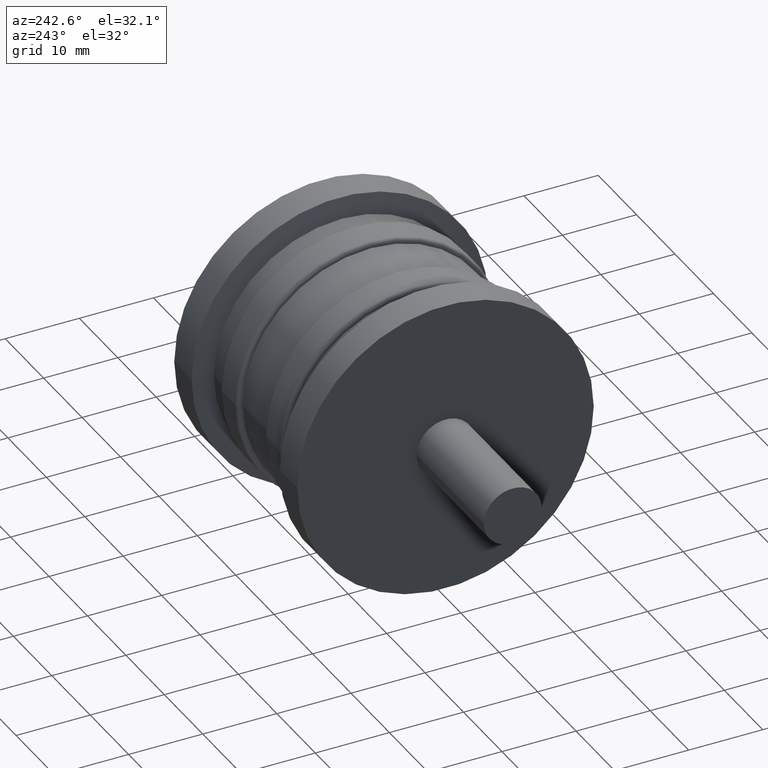
[diagram: clean part render]
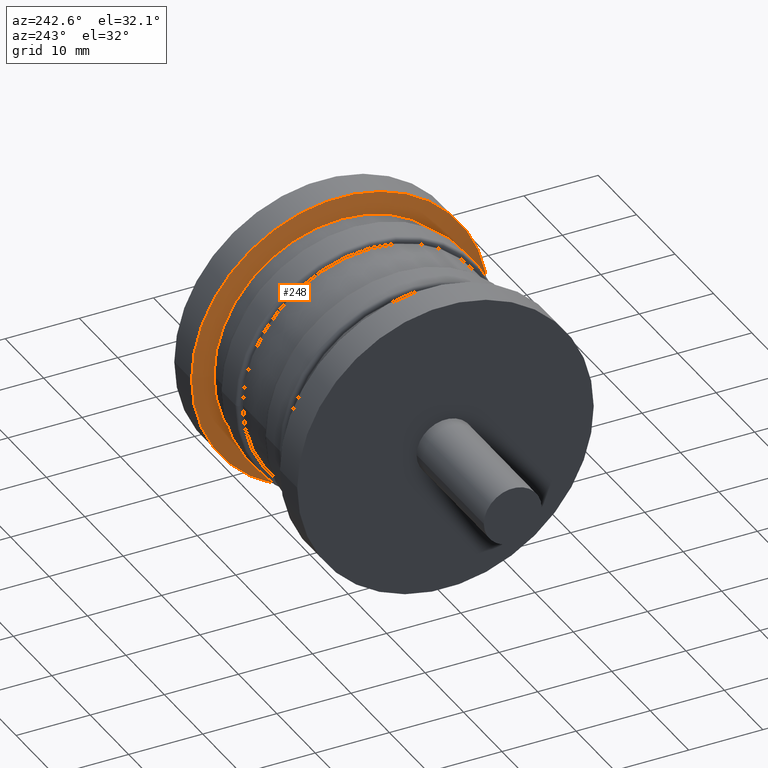
[diagram: same view with one face highlighted and labeled with its STEP entity id]
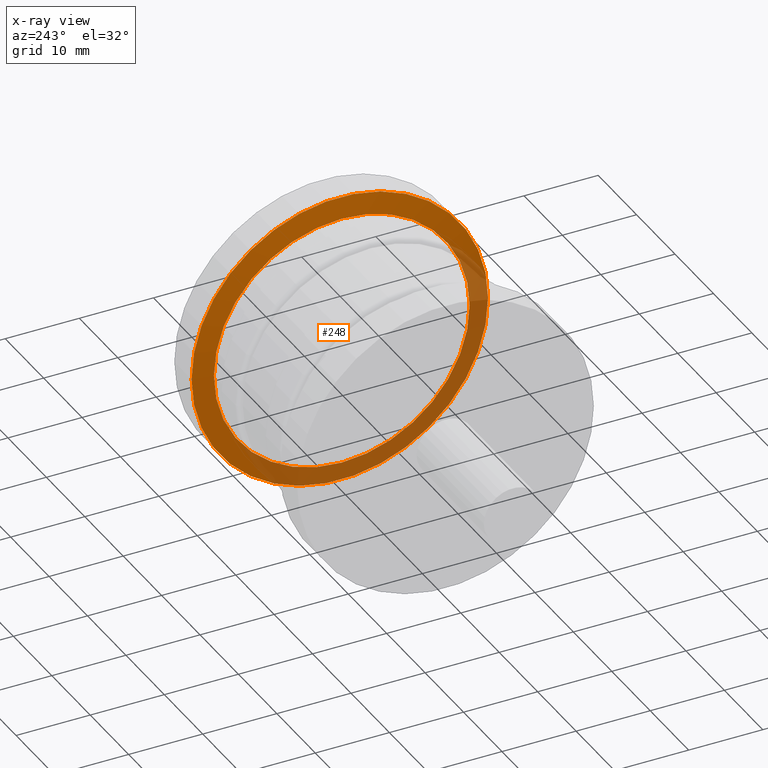
[diagram: x-ray of the same camera — body ghosted, the highlighted face saturated]
A machine part, auxiliary view. The second image highlights one B-rep face of the part: STEP entity #248.
The next image is the same camera in x-ray: the body ghosted, the highlighted face saturated — about 37% of this face is hidden behind the body in this view.
In plain terms, the highlighted conical surface has half-angle 79.695 deg.
Its self-contained STEP definition (entity closure, byte-faithful):
#15=CONICAL_SURFACE('',#288,18.625,79.695153531234);
#46=FACE_BOUND('',#103,.T.);
#67=FACE_OUTER_BOUND('',#102,.T.);
#102=EDGE_LOOP('',(#212));
#103=EDGE_LOOP('',(#213));
#136=CIRCLE('',#287,20.);
#137=CIRCLE('',#289,17.25);
#158=VERTEX_POINT('',#439);
#159=VERTEX_POINT('',#442);
#180=EDGE_CURVE('',#158,#158,#136,.T.);
#181=EDGE_CURVE('',#159,#159,#137,.T.);
#212=ORIENTED_EDGE('',*,*,#180,.F.);
#213=ORIENTED_EDGE('',*,*,#181,.T.);
#248=ADVANCED_FACE('',(#67,#46),#15,.T.);
#287=AXIS2_PLACEMENT_3D('',#440,#360,#361);
#288=AXIS2_PLACEMENT_3D('',#441,#362,#363);
#289=AXIS2_PLACEMENT_3D('',#443,#364,#365);
#360=DIRECTION('center_axis',(1.,0.,0.));
#361=DIRECTION('ref_axis',(0.,0.,-1.));
#362=DIRECTION('center_axis',(1.,0.,0.));
#363=DIRECTION('ref_axis',(0.,1.,0.));
#364=DIRECTION('center_axis',(1.,0.,0.));
#365=DIRECTION('ref_axis',(0.,0.,-1.));
#439=CARTESIAN_POINT('',(11.5,20.,0.));
#440=CARTESIAN_POINT('Origin',(11.5,0.,0.));
#441=CARTESIAN_POINT('Origin',(11.25,0.,0.));
#442=CARTESIAN_POINT('',(11.,17.25,0.));
#443=CARTESIAN_POINT('Origin',(11.,0.,0.));